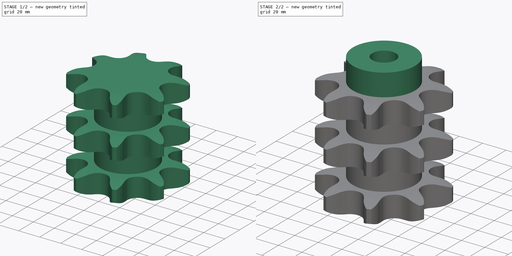
[diagram: build sequence overview — one tinted view per stage of 2, left to right]
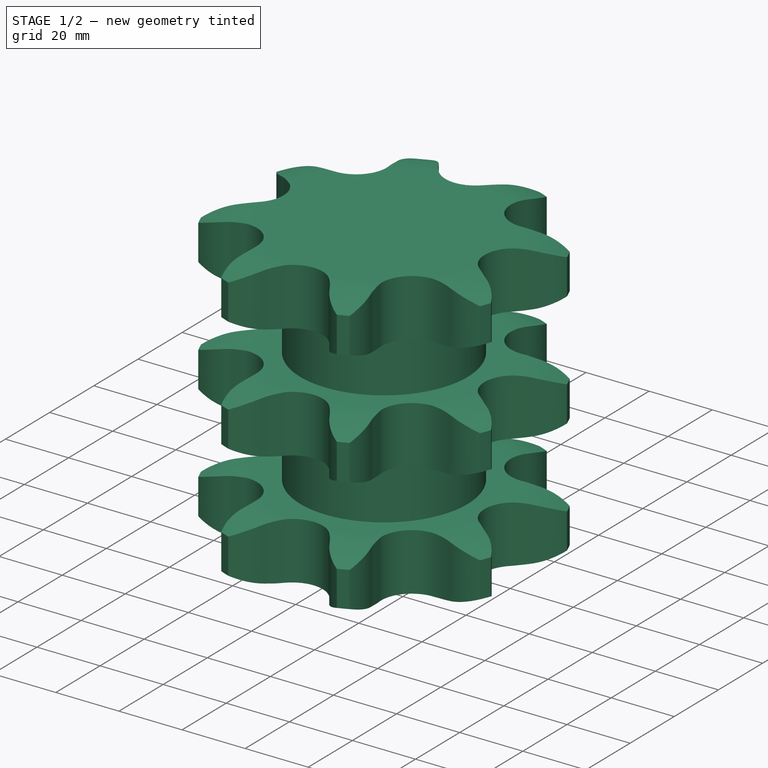
[diagram: stage 1 of 2 — iso view after this stage's code; geometry added in this stage tinted green]
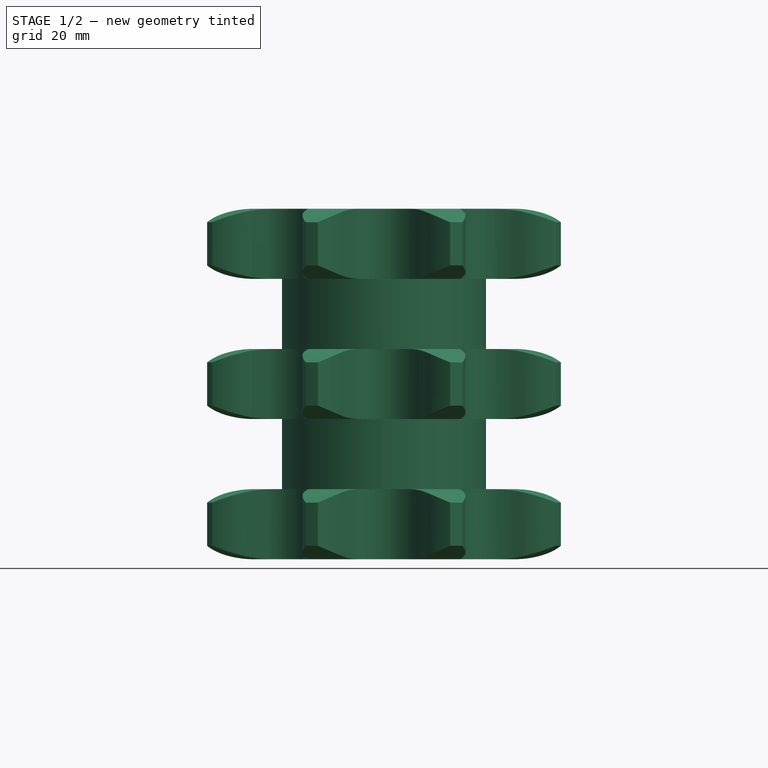
[diagram: stage 1 of 2 — front view after this stage's code; geometry added in this stage tinted green]
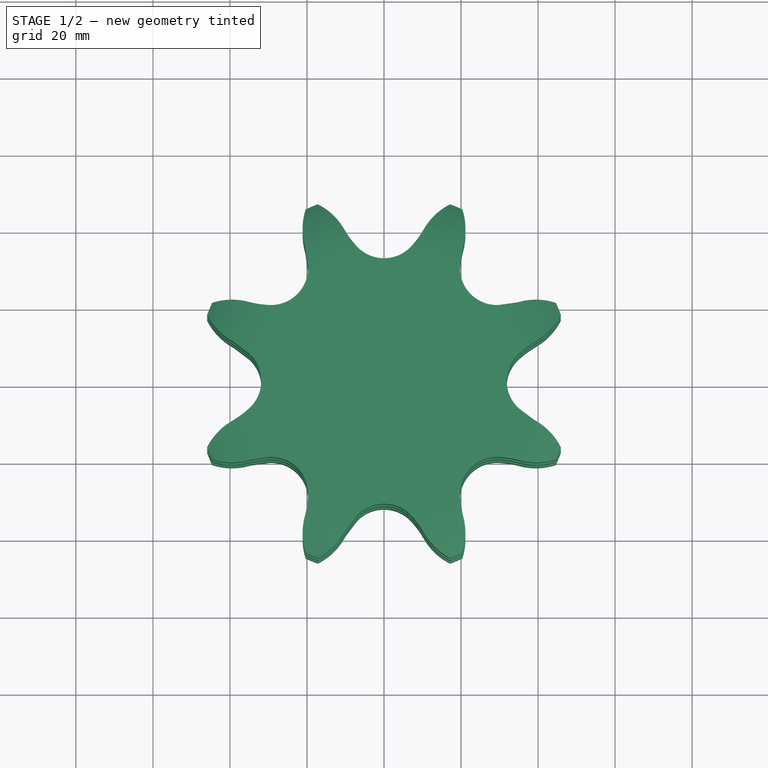
[diagram: stage 1 of 2 — top view after this stage's code; geometry added in this stage tinted green]
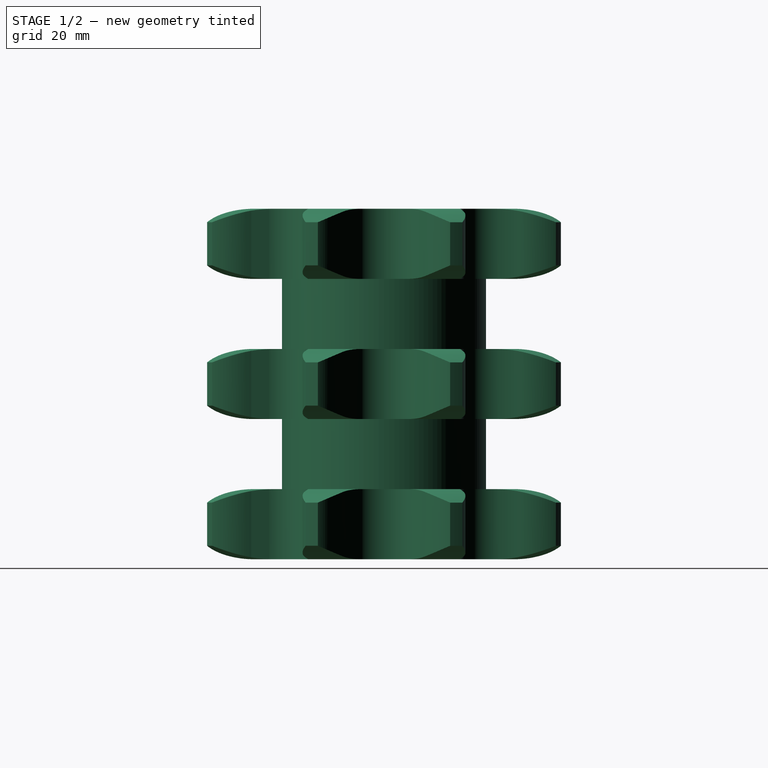
[diagram: stage 1 of 2 — right view after this stage's code; geometry added in this stage tinted green]
FCSTD DOCUMENT  (FreeCAD 1.0R38806 (Git))
Label: Sprocket ANSI triplex 1 ¼x¾
License: All rights reserved
LicenseURL: http://en.wikipedia.org/wiki/All_rights_reserved
objects: Sketcher::SketchObject×3, PartDesign::Pad×2, Spreadsheet::Sheet×1, Part::Part2DObjectPython×1, PartDesign::Groove×1, PartDesign::Pocket×1, PartDesign::Body×1
note: 20 computed .brp shape members not serialized (recipe doc carries the construction recipe); baked Part::Feature solids carry a one-line shape summary decoded from their .brp

FEATURE [Spreadsheet::Sheet] Spreadsheet  label="Data"
  TeethNumber = 0
  cells = A1='Number of teeth; B1='P (Pitch); C1='Wc (Chain width); D1='Dr (Roller diameter); E1='Tr (Tooth radius); F1='Rw (Radius width); G1='Wt1 (Tooth width 1); H1='Wt3 (Tooth width 3); I1='z (Number of teeth); J1='De (External Diameter); K1='Dp (pitch diameter); L1='d (Hub diameter); M1='D (Hole diameter); N1='H (Total height); A2==hiddenref(.TeethNumber.String); B2(P)==.B3; C2(Wc)==.C3; D2(Dr)==.D3; E2(Tr)==.E3; F2(Rw)==.F3; G2(Wt1)==.G3; H2(Wt3)==.H3; I2(z)==.I3; J2(De)==.J3; K2(Dp)==.K3; L2(d)==.L3; M2(D)==.M3; N2(H)==.N3; A3='Z 8; B3==31.75 mm; C3==19.56 mm; D3==19.05 mm; E3==32 mm; F3==3.5 mm; G3==18.2 mm; H3==91 mm; I3=8; J3==98.1 mm; K3==82.96 mm; L3==53 mm; M3==20 mm; N3==110 mm; A4='Z 9; B4==31.75 mm; C4==19.56 mm; D4==19.05 mm; E4==32 mm; F4==3.5 mm; G4==18.2 mm; H4==91 mm; I4=9; J4==108 mm; K4==92.84 mm; L4==63 mm; M4==20 mm; N4==110 mm; A5='Z 10; B5==31.75 mm; C5==19.56 mm; D5==19.05 mm; E5==32 mm; F5==3.5 mm; G5==18.2 mm; H5==91 mm; I5=10; J5==117.9 mm; K5==102.74 mm; L5==70 mm; M5==20 mm; N5==110 mm; A6='Z 11; B6==31.75 mm; C6==19.56 mm; D6==19.05 mm; E6==32 mm; F6==3.5 mm; G6==18.2 mm; H6==91 mm; I6=11; J6==127.8 mm; K6==112.68 mm; L6==80 mm; M6==20 mm; N6==115 mm; A7='Z 12; B7==31.75 mm; C7==19.56 mm; D7==19.05 mm; E7==32 mm; F7==3.5 mm; G7==18.2 mm; H7==91 mm; I7=12; J7==137.8 mm; K7==122.68 mm; L7==90 mm; M7==20 mm; N7==115 mm; A8='Z 13; B8==31.75 mm; C8==19.56 mm; D8==19.05 mm; E8==32 mm; F8==3.5 mm; G8==18.2 mm; H8==91 mm; I8=13; J8==147.8 mm; K8==132.65 mm; L8==100 mm; M8==20 mm; N8==115 mm; A9='Z 14; B9==31.75 mm; C9==19.56 mm; D9==19.05 mm; E9==32 mm; F9==3.5 mm; G9==18.2 mm; H9==91 mm; I9=14; J9==157.8 mm; K9==142.68 mm; L9==110 mm; M9==20 mm; N9==115 mm; A10='Z 15; B10==31.75 mm; C10==19.56 mm; D10==19.05 mm; E10==32 mm; F10==3.5 mm; G10==18.2 mm; H10==91 mm; I10=15; J10==167.9 mm; K10==152.72 mm; L10==120 mm; M10==20 mm; N10==115 mm; A11='Z 16; B11==31.75 mm; C11==19.56 mm; D11==19.05 mm; E11==32 mm; F11==3.5 mm; G11==18.2 mm; H11==91 mm; I11=16; J11==177.9 mm; K11==162.75 mm; L11==120 mm; M11==25 mm; N11==115 mm; A12='Z 17; B12==31.75 mm; C12==19.56 mm; D12==19.05 mm; E12==32 mm; F12==3.5 mm; G12==18.2 mm; H12==91 mm; I12=17; J12==187.9 mm; K12==172.78 mm; L12==120 mm; M12==25 mm; N12==115 mm; A13='Z 18; B13==31.75 mm; C13==19.56 mm; D13==19.05 mm; E13==32 mm; F13==3.5 mm; G13==18.2 mm; H13==91 mm; I13=18; J13==198 mm; K13==182.85 mm; L13==120 mm; M13==25 mm; N13==115 mm; A14='Z 19; B14==31.75 mm; C14==19.56 mm; D14==19.05 mm; E14==32 mm; F14==3.5 mm; G14==18.2 mm; H14==91 mm; I14=19; J14==208.1 mm; K14==192.91 mm; L14==120 mm; M14==25 mm; N14==115 mm; A15='Z 20; B15==31.75 mm; C15==19.56 mm; D15==19.05 mm; +290 more cells
  expr: .TeethNumber.Enum = cells[<<A3:|>>]
  expr: .cells.Bind.B2.ZZ2 = tuple(.cells; <<B>> + str(hiddenref(TeethNumber) + 3); <<ZZ>> + str(hiddenref(TeethNumber) + 3))
FEATURE [Part::Part2DObjectPython] Sprocket  label="Teeth sketch"  # Draft 2D object (typed FeaturePython)
  ANSISize = 100
  NumberOfTeeth = 8
  Pitch = 31.75
  RollerDiameter = 19.05
  Thickness = 2.794
  expr: NumberOfTeeth = <<Data>>.z
  expr: Pitch = <<Data>>.P
  expr: RollerDiameter = <<Data>>.Dr
FEATURE [PartDesign::Pad] Pad  label="Teeth"
  Direction = (0,0,1)
  Length = 91
  Length2 = 100
  Profile = -> Sprocket
  Suppressed = false
  Type = 0
  expr: Length = Spreadsheet.Wt3
FEATURE [Sketcher::SketchObject] Sketch  label="Radius"
  ArcFitTolerance = 0
  AttachmentSupport = -> [XZ_Plane]
  FullyConstrained = true
  MakeInternals = false
  MapMode = 5
  Placement = pos=(0,0,0) rot=(1,0,0;1.5708rad)
  expr: .Constraints.Re = <<Data>>.De / 2
  expr: .Constraints.Rw = <<Data>>.Rw
  expr: .Constraints.Tr = <<Data>>.Tr
  expr: .Constraints.Wt1 = <<Data>>.Wt1
  expr: .Constraints.Wt3 = Spreadsheet.Wt3
  expr: .Constraints.r = <<Data>>.d / 2
  sketch-geometry (26):
    g0: ArcOfCircle CenterX=34.4984 CenterY=32 CenterZ=0 NormalX=0 NormalY=0 NormalZ=1 AngleXU=0 Radius=32 StartAngle=4.71239 EndAngle=5.18447
    g1: LineSegment StartX=34.4984 StartY=0 StartZ=0 EndX=59.05 EndY=0 EndZ=0
    g2: LineSegment StartX=59.05 StartY=91 StartZ=0 EndX=59.05 EndY=0 EndZ=0
    g3: ArcOfCircle CenterX=34.4984 CenterY=-13.8 CenterZ=0 NormalX=0 NormalY=0 NormalZ=1 AngleXU=0 Radius=32 StartAngle=1.09872 EndAngle=1.5708
    g4: LineSegment StartX=49.05 StartY=3.5 StartZ=0 EndX=49.05 EndY=14.7 EndZ=0
    g5: ArcOfCircle CenterX=34.4984 CenterY=104.8 CenterZ=0 NormalX=0 NormalY=0 NormalZ=1 AngleXU=0 Radius=32 StartAngle=4.71239 EndAngle=5.18447
    g6: LineSegment StartX=49.05 StartY=76.3 StartZ=0 EndX=49.05 EndY=87.5 EndZ=0
    g7: LineSegment StartX=34.4984 StartY=91 StartZ=0 EndX=59.05 EndY=91 EndZ=0
    g8: ArcOfCircle CenterX=34.4984 CenterY=59 CenterZ=0 NormalX=0 NormalY=0 NormalZ=1 AngleXU=0 Radius=32 StartAngle=1.09872 EndAngle=1.5708
    g9: LineSegment StartX=34.4984 StartY=72.8 StartZ=0 EndX=26.5 EndY=72.8 EndZ=0
    g10: LineSegment StartX=26.5 StartY=18.2 StartZ=0 EndX=34.4984 EndY=18.2 EndZ=0
    g11: LineSegment StartX=26.5 StartY=72.8 StartZ=0 EndX=26.5 EndY=54.6 EndZ=0
    g12: LineSegment StartX=26.5 StartY=18.2 StartZ=0 EndX=26.5 EndY=36.4 EndZ=0
    g13: LineSegment StartX=26.5 StartY=54.6 StartZ=0 EndX=34.4984 EndY=54.6 EndZ=0
    g14: LineSegment StartX=26.5 StartY=36.4 StartZ=0 EndX=34.4984 EndY=36.4 EndZ=0
    g15: LineSegment StartX=49.05 StartY=51.1 StartZ=0 EndX=49.05 EndY=39.9 EndZ=0
    g16: LineSegment [constr] StartX=49.05 StartY=76.3 StartZ=0 EndX=49.05 EndY=51.1 EndZ=0
    g17: LineSegment [constr] StartX=49.05 StartY=39.9 StartZ=0 EndX=49.05 EndY=14.7 EndZ=0
    g18: ArcOfCircle CenterX=34.4984 CenterY=22.6 CenterZ=0 NormalX=0 NormalY=0 NormalZ=1 AngleXU=0 Radius=32 StartAngle=1.09872 EndAngle=1.5708
    g19: ArcOfCircle CenterX=34.4984 CenterY=68.4 CenterZ=0 NormalX=0 NormalY=0 NormalZ=1 AngleXU=0 Radius=32 StartAngle=4.71239 EndAngle=5.18447
    g20: LineSegment [constr] StartX=34.4984 StartY=54.6 StartZ=0 EndX=34.4984 EndY=36.4 EndZ=0
    g21: LineSegment [constr] StartX=34.4984 StartY=18.2 StartZ=0 EndX=34.4984 EndY=0 EndZ=0
    g22: LineSegment [constr] StartX=34.4984 StartY=91 StartZ=0 EndX=34.4984 EndY=72.8 EndZ=0
    g23: LineSegment [constr] StartX=26.5 StartY=54.6 StartZ=0 EndX=26.5 EndY=36.4 EndZ=0
    g24: LineSegment [constr] StartX=34.4984 StartY=18.2 StartZ=0 EndX=34.4984 EndY=36.4 EndZ=0
    g25: LineSegment [constr] StartX=34.4984 StartY=72.8 StartZ=0 EndX=34.4984 EndY=54.6 EndZ=0
  constraints (70):
    c: PointOnObject(g0,g-1)
    c: Radius(g0) = 32  'Tr'
    c: DistanceY(g0,g0) = 3.5  'Rw'
    c: PointOnObject(g1,g-1)
    c: Coincident(g2,g1)
    c: Vertical(g2)
    c: DistanceX(g0) = 49.05  'Re'
    c: Coincident(g4,g0)
    c: Vertical(g4)
    c: Coincident(g4,g3)
    c: Equal(g3,g0)
    c: Coincident(g6,g5)
    c: Vertical(g6)
    c: Coincident(g7,g2)
    c: Horizontal(g7)
    c: DistanceY(g0,g3) = 18.2  'Wt1'
    c: DistanceY(g2,g2) = 91  'Wt3'
    c: Coincident(g8,g6)
    c: Tangent(g8,g7) = 1.5708
    c: Equal(g0,g8)
    c: Equal(g6,g4)
    c: Horizontal(g9)
    c: Horizontal(g10)
    c: DistanceX(g9) = 26.5  'r'
    c: DistanceX(g6,g2) = 10
    c: Coincident(g11,g9)
    c: Vertical(g11)
    c: Coincident(g12,g10)
    c: Vertical(g12)
    c: Coincident(g13,g11)
    c: Horizontal(g13)
    c: Coincident(g14,g12)
    c: Horizontal(g14)
    c: Vertical(g15)
    c: Coincident(g16,g5)
    c: Coincident(g16,g15)
    c: Vertical(g16)
    c: Coincident(g17,g15)
    c: Coincident(g17,g3)
    c: Vertical(g17)
    c: Equal(g16,g17)
    c: Coincident(g18,g15)
    c: Coincident(g19,g15)
    c: Tangent(g19,g14) = -1.5708
    c: Tangent(g18,g13) = 1.5708
    c: Equal(g0,g19)
    c: Equal(g0,g18)
    c: Coincident(g20,g13)
    c: Coincident(g20,g14)
    c: Vertical(g20)
    c: Coincident(g21,g3)
    c: Coincident(g21,g0)
    c: Vertical(g21)
    c: Tangent(g9,g5) = 1.5708
    c: Tangent(g10,g3) = 1.5708
    c: Tangent(g1,g0) = -1.5708
    c: Equal(g21,g20)
    c: Coincident(g22,g7)
    c: Coincident(g22,g5)
    c: Vertical(g22)
    c: Equal(g0,g5)
    c: Coincident(g23,g11)
    c: Coincident(g23,g12)
    c: Vertical(g23)
    c: Coincident(g24,g3)
    c: Coincident(g24,g14)
    c: Vertical(g24)
    c: Coincident(g25,g5)
    c: Coincident(g25,g13)
    c: Vertical(g25)
FEATURE [PartDesign::Groove] Groove  label="Teeth Radius"
  Angle = 360
  Angle2 = 60
  Axis = (-3e-16,3e-16,1)
  Base = (0,0,0)
  BaseFeature = -> Pad
  Profile = -> Sketch
  ReferenceAxis = -> Z_Axis
  Suppressed = false
  Type = 0
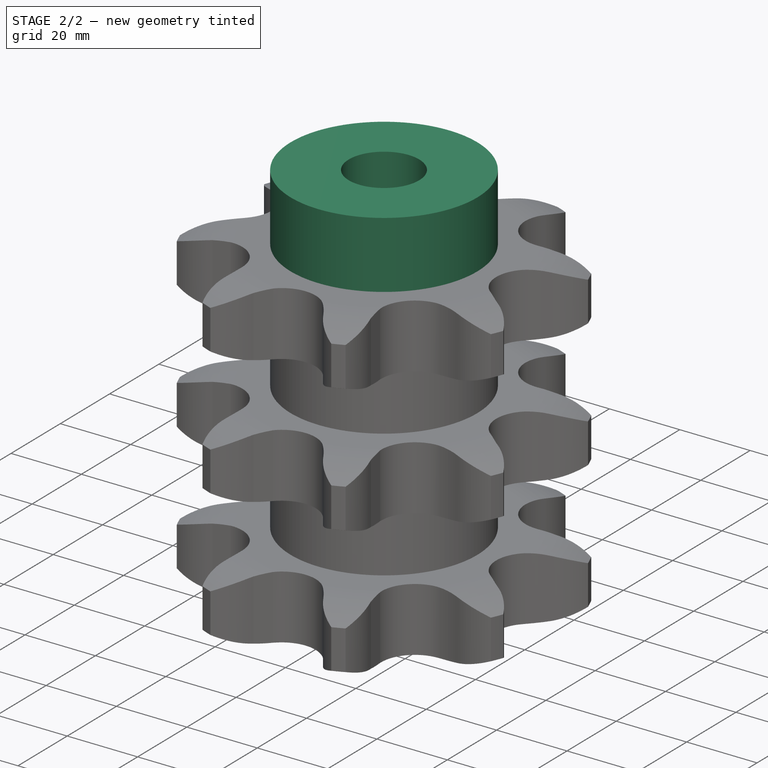
[diagram: stage 2 of 2 — iso view after this stage's code; geometry added in this stage tinted green]
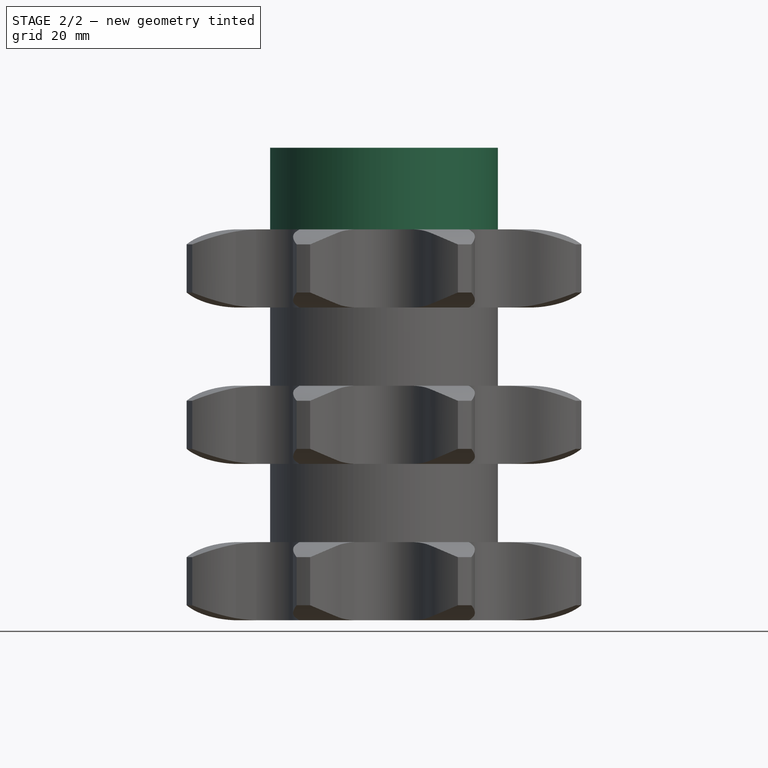
[diagram: stage 2 of 2 — front view after this stage's code; geometry added in this stage tinted green]
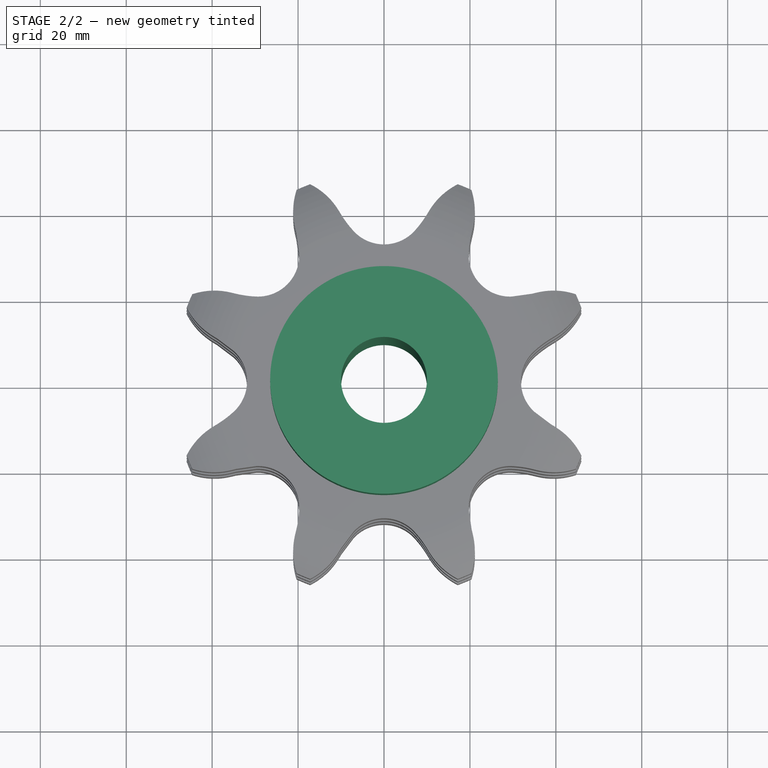
[diagram: stage 2 of 2 — top view after this stage's code; geometry added in this stage tinted green]
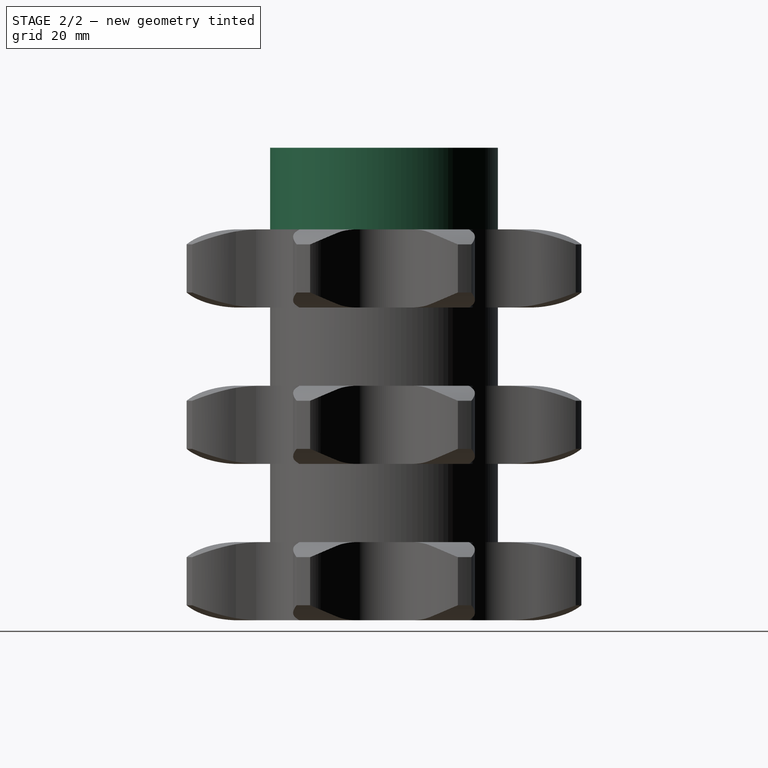
[diagram: stage 2 of 2 — right view after this stage's code; geometry added in this stage tinted green]
FEATURE [Sketcher::SketchObject] Sketch001  label="Hub sketch"
  ArcFitTolerance = 0
  AttachmentSupport = -> [XY_Plane]
  FullyConstrained = true
  MakeInternals = false
  MapMode = 5
  expr: .Constraints.r = <<Data>>.d
  sketch-geometry (1):
    g0: Circle CenterX=0 CenterY=0 CenterZ=0 NormalX=0 NormalY=0 NormalZ=1 AngleXU=0 Radius=26.5
  constraints (2):
    c: Coincident(g0,g-1)
    c: Diameter(g0) = 53  'r'
FEATURE [PartDesign::Pad] Pad001  label="Hub"
  BaseFeature = -> Groove
  Direction = (0,0,1)
  Length = 110
  Length2 = 100
  Profile = -> Sketch001
  Suppressed = false
  Type = 0
FEATURE [Sketcher::SketchObject] Sketch002  label="Hole sketch"
  ArcFitTolerance = 0
  AttachmentSupport = -> [XY_Plane]
  FullyConstrained = true
  MakeInternals = false
  MapMode = 5
  expr: .Constraints.R = <<Data>>.D
  sketch-geometry (1):
    g0: Circle CenterX=0 CenterY=0 CenterZ=0 NormalX=0 NormalY=0 NormalZ=1 AngleXU=0 Radius=10
  constraints (2):
    c: Coincident(g0,g-1)
    c: Diameter(g0) = 20  'R'
FEATURE [PartDesign::Pocket] Pocket  label="Hole"
  BaseFeature = -> Pad001
  Direction = (0,0,-1)
  Length = 5
  Length2 = 100
  Midplane = true
  Profile = -> Sketch002
  Suppressed = false
  Type = 1
FEATURE [PartDesign::Body] Body  label="Sprocket ANSI triplex 1 ¼x¾"
  AllowCompound = false
  Group = -> [Sprocket,Pad,Sketch,Groove,Sketch001,Pad001,Sketch002,Pocket]
  Origin = -> Origin
  Tip = -> Pocket
  expr: Label2 = <<z%s>> % <<Data>>.z
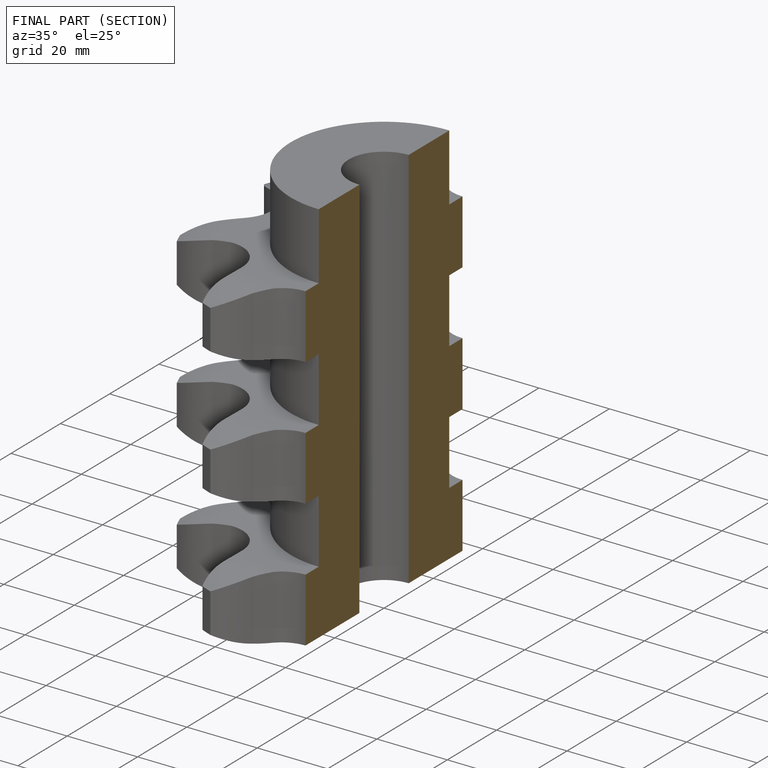
[diagram: finished part — half-section view (interior)]
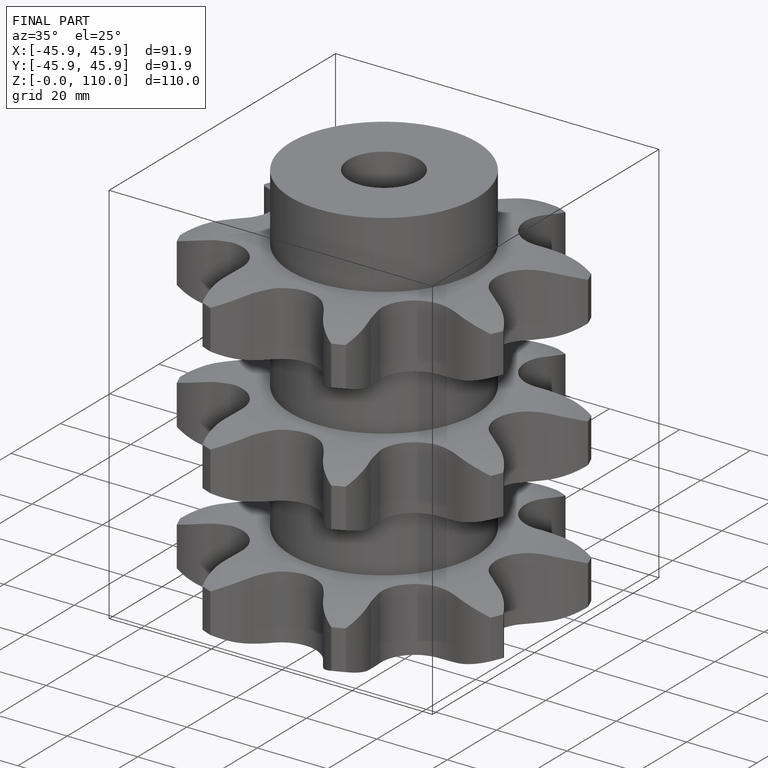
[diagram: finished part — iso view with bounding-box wireframe]
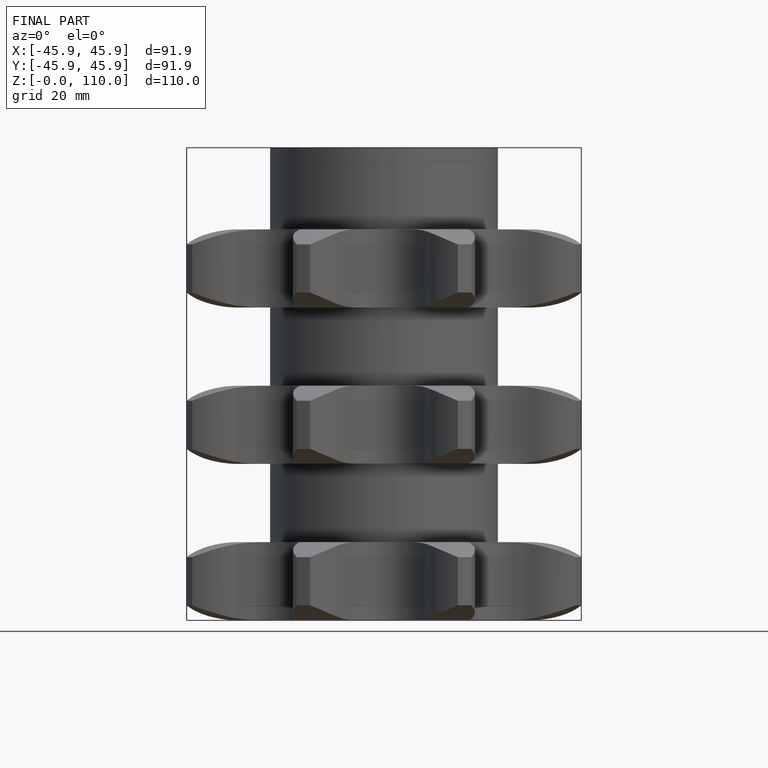
[diagram: finished part — front view with bounding-box wireframe]
